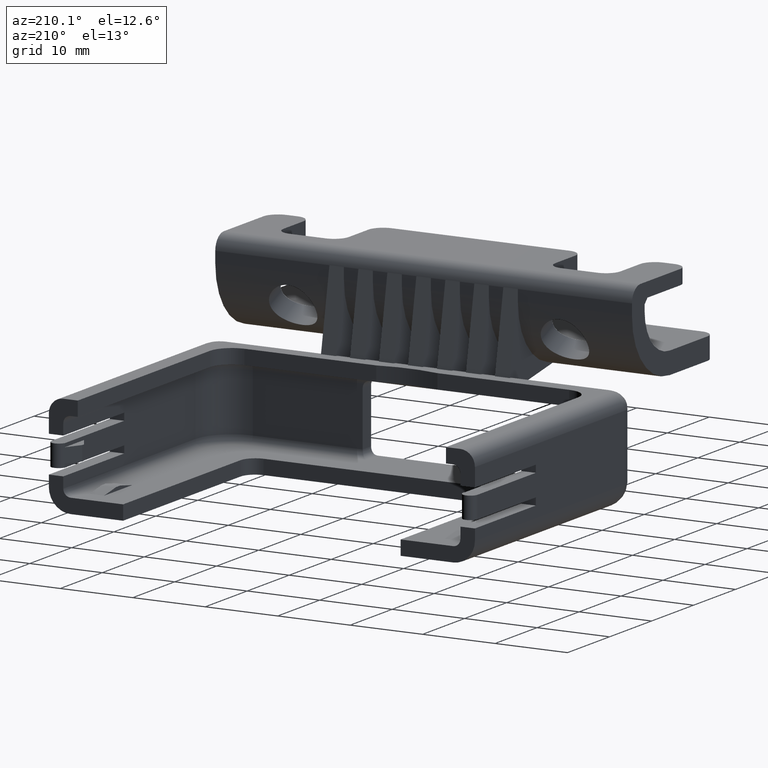
[diagram: clean part render]
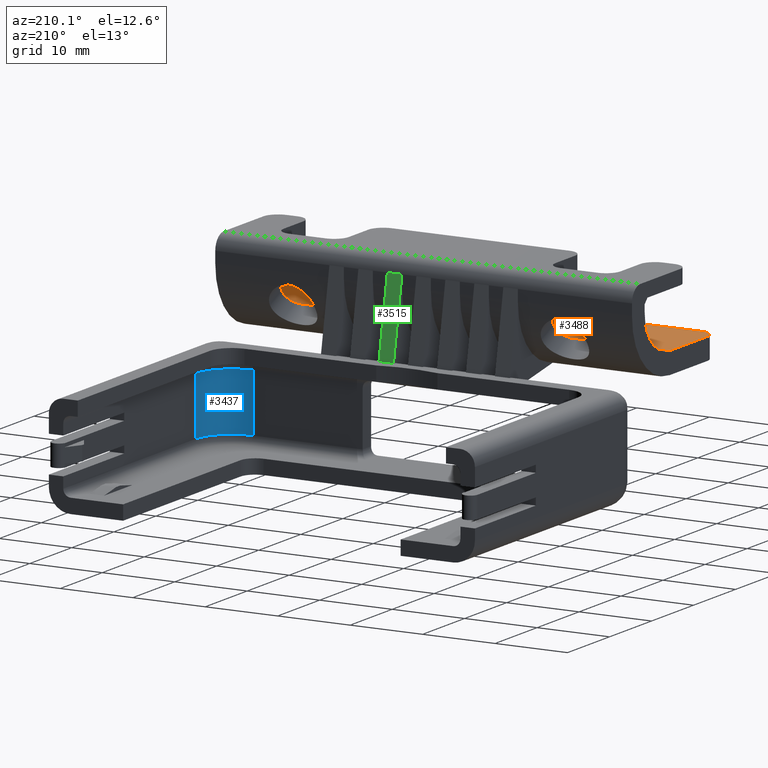
[diagram: same view with three faces highlighted in distinct colors, each labeled with its STEP entity id]
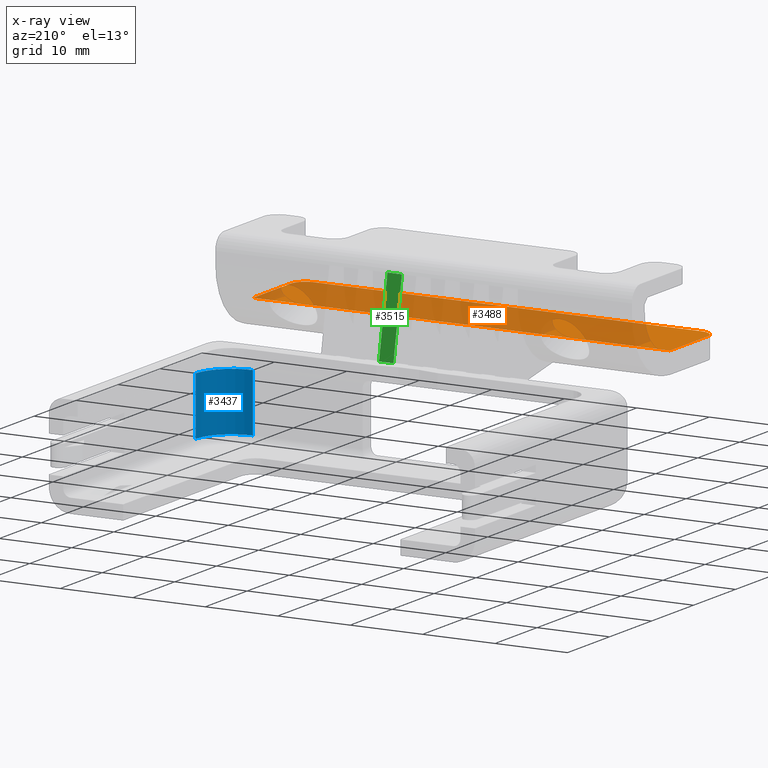
[diagram: x-ray of the same camera — body ghosted, the three highlighted faces saturated]
A machine part, auxiliary view with three faces highlighted in distinct colors.
The next image is the same camera in x-ray (body ghosted, the three faces saturated) — at least one of them is partly hidden behind the body in this view.
Their STEP definitions:

[orange] entity #3488 — the highlighted planar face has unit normal (0, 0, 1).
#642=CIRCLE('',#3739,0.2);
#644=CIRCLE('',#3743,0.2);
#919=VERTEX_POINT('',#5512);
#920=VERTEX_POINT('',#5513);
#923=VERTEX_POINT('',#5521);
#925=VERTEX_POINT('',#5527);
#926=VERTEX_POINT('',#5529);
#927=VERTEX_POINT('',#5531);
#1221=VECTOR('',#4336,1.);
#1224=VECTOR('',#4340,1.);
#1225=VECTOR('',#4341,1.);
#1226=VECTOR('',#4342,1.);
#1514=LINE('',#5520,#1221);
#1517=LINE('',#5526,#1224);
#1518=LINE('',#5528,#1225);
#1519=LINE('',#5530,#1226);
#1901=EDGE_CURVE('',#919,#920,#642,.T.);
#1905=EDGE_CURVE('',#920,#923,#1514,.T.);
#1908=EDGE_CURVE('',#919,#925,#1517,.T.);
#1909=EDGE_CURVE('',#925,#926,#1518,.T.);
#1910=EDGE_CURVE('',#926,#927,#1519,.T.);
#1911=EDGE_CURVE('',#923,#927,#644,.T.);
#2643=ORIENTED_EDGE('',*,*,#1901,.F.);
#2644=ORIENTED_EDGE('',*,*,#1908,.T.);
#2645=ORIENTED_EDGE('',*,*,#1909,.T.);
#2646=ORIENTED_EDGE('',*,*,#1910,.T.);
#2647=ORIENTED_EDGE('',*,*,#1911,.F.);
#2648=ORIENTED_EDGE('',*,*,#1905,.F.);
#3118=EDGE_LOOP('',(#2643,#2644,#2645,#2646,#2647,#2648));
#3304=FACE_BOUND('',#3118,.T.);
#3488=ADVANCED_FACE('',(#3304),#6015,.T.);
#3739=AXIS2_PLACEMENT_3D('',#5511,#4329,#4330);
#3742=AXIS2_PLACEMENT_3D('',#5525,#4339,$);
#3743=AXIS2_PLACEMENT_3D('',#5532,#4343,#4344);
#4329=DIRECTION('',(-1.,0.,0.));
#4330=DIRECTION('',(0.,-0.14142135623731,-0.141421356237309));
#4336=DIRECTION('',(0.,0.,1.));
#4339=DIRECTION('',(1.,0.,0.));
#4340=DIRECTION('',(0.,1.,0.));
#4341=DIRECTION('',(0.,0.,1.));
#4342=DIRECTION('',(0.,-1.,0.));
#4343=DIRECTION('',(-1.,0.,0.));
#4344=DIRECTION('',(0.,-0.141421356237309,0.14142135623731));
#5511=CARTESIAN_POINT('',(-0.375,-1.125,0.2));
#5512=CARTESIAN_POINT('',(-0.375,-1.125,0.));
#5513=CARTESIAN_POINT('',(-0.375,-1.325,0.2));
#5520=CARTESIAN_POINT('',(-0.375,-1.325,0.));
#5521=CARTESIAN_POINT('',(-0.375,-1.325,5.55));
#5525=CARTESIAN_POINT('',(-0.375,-0.775,0.));
#5526=CARTESIAN_POINT('',(-0.375,-1.325,0.));
#5527=CARTESIAN_POINT('',(-0.375,-0.225,0.));
#5528=CARTESIAN_POINT('',(-0.375,-0.225,0.));
#5529=CARTESIAN_POINT('',(-0.375,-0.225,5.75));
#5530=CARTESIAN_POINT('',(-0.375,-1.325,5.75));
#5531=CARTESIAN_POINT('',(-0.375,-1.125,5.75));
#5532=CARTESIAN_POINT('',(-0.375,-1.125,5.55));
#6015=PLANE('',#3742);

[blue] entity #3437 — the highlighted cylindrical surface (partial cylindrical patch) has radius 5 mm, axis along (0, 0, 1).
#610=CIRCLE('',#3650,0.5);
#615=CIRCLE('',#3661,0.5);
#700=CYLINDRICAL_SURFACE('',#3660,0.5);
#827=VERTEX_POINT('',#5202);
#828=VERTEX_POINT('',#5206);
#836=VERTEX_POINT('',#5241);
#846=VERTEX_POINT('',#5277);
#1112=VECTOR('',#4043,1.);
#1135=VECTOR('',#4119,1.);
#1405=LINE('',#5207,#1112);
#1428=LINE('',#5276,#1135);
#1747=EDGE_CURVE('',#827,#828,#1405,.T.);
#1771=EDGE_CURVE('',#836,#828,#610,.T.);
#1784=EDGE_CURVE('',#836,#846,#1428,.T.);
#1785=EDGE_CURVE('',#827,#846,#615,.T.);
#2369=ORIENTED_EDGE('',*,*,#1771,.F.);
#2370=ORIENTED_EDGE('',*,*,#1784,.T.);
#2371=ORIENTED_EDGE('',*,*,#1785,.F.);
#2372=ORIENTED_EDGE('',*,*,#1747,.T.);
#3067=EDGE_LOOP('',(#2369,#2370,#2371,#2372));
#3253=FACE_BOUND('',#3067,.T.);
#3437=ADVANCED_FACE('',(#3253),#700,.F.);
#3650=AXIS2_PLACEMENT_3D('',#5252,#4091,#4092);
#3660=AXIS2_PLACEMENT_3D('',#5275,#4117,#4118);
#3661=AXIS2_PLACEMENT_3D('',#5278,#4120,#4121);
#4043=DIRECTION('',(0.,0.,1.));
#4091=DIRECTION('',(2.8106722626267E-033,8.36190768311239E-032,-1.));
#4092=DIRECTION('',(0.353553390593274,-0.353553390593274,0.));
#4117=DIRECTION('',(0.,0.,1.));
#4118=DIRECTION('',(0.353553390593274,-0.353553390593274,0.));
#4119=DIRECTION('',(0.,0.,-1.));
#4120=DIRECTION('',(0.,0.,1.));
#4121=DIRECTION('',(0.353553390593274,-0.353553390593274,0.));
#5202=CARTESIAN_POINT('',(2.24,-1.725,0.3));
#5206=CARTESIAN_POINT('',(2.24,-1.725,1.1));
#5207=CARTESIAN_POINT('',(2.24,-1.725,0.));
#5241=CARTESIAN_POINT('',(2.74,-1.225,1.1));
#5252=CARTESIAN_POINT('',(2.24,-1.225,1.1));
#5275=CARTESIAN_POINT('',(2.24,-1.225,0.));
#5276=CARTESIAN_POINT('',(2.74,-1.225,0.));
#5277=CARTESIAN_POINT('',(2.74,-1.225,0.3));
#5278=CARTESIAN_POINT('',(2.24,-1.225,0.3));

[green] entity #3515 — the highlighted planar face has unit normal (-0, 0.9823, 0.1871).
#973=VERTEX_POINT('',#5679);
#978=VERTEX_POINT('',#5695);
#979=VERTEX_POINT('',#5697);
#980=VERTEX_POINT('',#5701);
#1244=VECTOR('',#4387,1.);
#1268=VECTOR('',#4445,1.);
#1269=VECTOR('',#4449,1.);
#1270=VECTOR('',#4450,1.);
#1537=LINE('',#5593,#1244);
#1561=LINE('',#5696,#1268);
#1562=LINE('',#5700,#1269);
#1563=LINE('',#5702,#1270);
#1989=EDGE_CURVE('',#979,#978,#1561,.T.);
#1991=EDGE_CURVE('',#978,#980,#1562,.T.);
#1992=EDGE_CURVE('',#973,#980,#1537,.T.);
#1993=EDGE_CURVE('',#973,#979,#1563,.T.);
#2786=ORIENTED_EDGE('',*,*,#1991,.T.);
#2787=ORIENTED_EDGE('',*,*,#1992,.F.);
#2788=ORIENTED_EDGE('',*,*,#1993,.T.);
#2789=ORIENTED_EDGE('',*,*,#1989,.T.);
#3146=EDGE_LOOP('',(#2786,#2787,#2788,#2789));
#3332=FACE_BOUND('',#3146,.T.);
#3515=ADVANCED_FACE('',(#3332),#6031,.T.);
#3782=AXIS2_PLACEMENT_3D('',#5699,#4448,$);
#4387=DIRECTION('',(0.,0.,1.));
#4445=DIRECTION('',(0.,0.,1.));
#4448=DIRECTION('',(0.187112107889995,0.982338566422475,0.));
#4449=DIRECTION('',(0.982338566422475,-0.187112107889995,0.));
#4450=DIRECTION('',(-0.982338566422475,0.187112107889995,0.));
#5593=CARTESIAN_POINT('',(0.375,0.675,0.));
#5679=CARTESIAN_POINT('',(0.375,0.675,2.375));
#5695=CARTESIAN_POINT('',(-0.675,0.875,2.575));
#5696=CARTESIAN_POINT('',(-0.675,0.875,2.375));
#5697=CARTESIAN_POINT('',(-0.675,0.875,2.375));
#5699=CARTESIAN_POINT('',(-0.15,0.775,2.375));
#5700=CARTESIAN_POINT('',(0.375,0.675,2.575));
#5701=CARTESIAN_POINT('',(0.375,0.675,2.575));
#5702=CARTESIAN_POINT('',(0.375,0.675,2.375));
#6031=PLANE('',#3782);